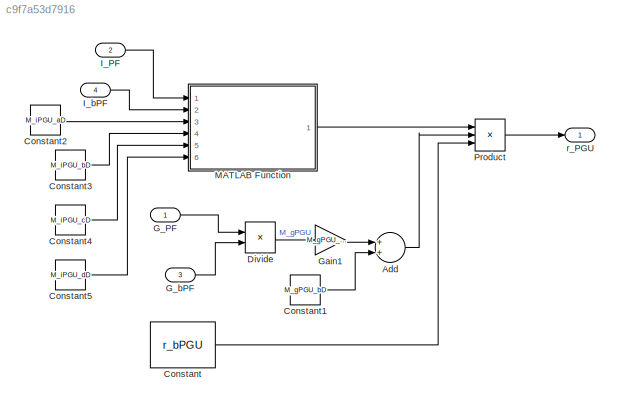
MODEL slx_c9f7a53d7916
KIND model
CONFIG AbsTol = auto
CONFIG EnableMultiTasking = off
CONFIG FixedStep = auto
CONFIG MaxStep = auto
CONFIG MinStep = auto
CONFIG RelTol = 1e-3
CONFIG SampleTimeConstraint = Unconstrained
CONFIG Solver = VariableStepAuto
CONFIG SolverName = VariableStepAuto
CONFIG StartTime = 0.0
CONFIG StopTime = 10.0
BLOCK [Sum] Add
  InputSameDT = off
  OutDataTypeStr = Inherit: Inherit via internal rule
  Ports = [2, 1]
  SaturateOnIntegerOverflow = off
BLOCK [Constant] Constant
  Value = r_bPGU
BLOCK [Constant] Constant1
  Value = M_gPGU_bD
BLOCK [Constant] Constant2
  Value = M_iPGU_aD
BLOCK [Constant] Constant3
  Value = M_iPGU_bD
BLOCK [Constant] Constant4
  Value = M_iPGU_cD
BLOCK [Constant] Constant5
  Value = M_iPGU_dD
BLOCK [Product] Divide
  InputSameDT = off
  Inputs = */
  OutDataTypeStr = Inherit: Inherit via internal rule
  Ports = [2, 1]
  RndMeth = Floor
  SaturateOnIntegerOverflow = off
BLOCK [Inport] G_PF
  IconDisplay = Port number
BLOCK [Inport] G_bPF
  IconDisplay = Port number
  Port = 3
BLOCK [Gain] Gain1
  Gain = M_gPGU_aD
  OutDataTypeStr = Inherit: Inherit via internal rule
  ParamDataTypeStr = Inherit: Inherit via internal rule
  SaturateOnIntegerOverflow = off
BLOCK [Inport] I_PF
  IconDisplay = Port number
  Port = 2
BLOCK [Inport] I_bPF
  IconDisplay = Port number
  Port = 4
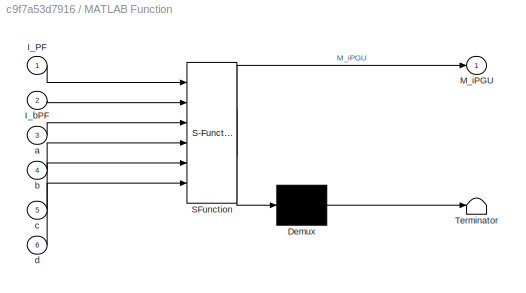
BLOCK [SubSystem] MATLAB Function
  ErrorFcn = Stateflow.Translate.translate
  PermitHierarchicalResolution = ExplicitOnly
  Ports = [6, 1]
  RequestExecContextInheritance = off
  SFBlockType = MATLAB Function
  TreatAsAtomicUnit = on
BLOCK [Demux] MATLAB Function/ Demux 
  Outputs = 1
  Ports = [1, 1]
BLOCK [S-Function] MATLAB Function/ SFunction 
  EnableBusSupport = on
  FunctionName = sf_sfun
  PortCounts = [6 2]
  Ports = [6, 2]
  SFcnIsStateOwnerBlock = off
  SFunctionDeploymentMode = off
  Tag = Stateflow S-Function r_PGU 2
BLOCK [Terminator] MATLAB Function/ Terminator 
BLOCK [Inport] MATLAB Function/I_PF
  IconDisplay = Port number
BLOCK [Inport] MATLAB Function/I_bPF
  IconDisplay = Port number
  Port = 2
BLOCK [Outport] MATLAB Function/M_iPGU
  IconDisplay = Port number
BLOCK [Inport] MATLAB Function/a
  IconDisplay = Port number
  Port = 3
BLOCK [Inport] MATLAB Function/b
  IconDisplay = Port number
  Port = 4
BLOCK [Inport] MATLAB Function/c
  IconDisplay = Port number
  Port = 5
BLOCK [Inport] MATLAB Function/d
  IconDisplay = Port number
  Port = 6
BLOCK [Product] Product
  InputSameDT = off
  Inputs = 3
  OutDataTypeStr = Inherit: Inherit via internal rule
  Ports = [3, 1]
  RndMeth = Floor
  SaturateOnIntegerOverflow = off
BLOCK [Outport] r_PGU
  IconDisplay = Port number
LINE Add:1 -> Product:2
LINE Constant1:1 -> Add:2
LINE Constant2:1 -> MATLAB Function:3
LINE Constant3:1 -> MATLAB Function:4
LINE Constant4:1 -> MATLAB Function:5
LINE Constant5:1 -> MATLAB Function:6
LINE Constant:1 -> Product:3
LINE Divide:1 -> Gain1:1
LINE G_PF:1 -> Divide:1
LINE G_bPF:1 -> Divide:2
LINE Gain1:1 -> Add:1
LINE I_PF:1 -> MATLAB Function:1
LINE I_bPF:1 -> MATLAB Function:2
LINE MATLAB Function:1 -> Product:1
LINE Product:1 -> r_PGU:1
CHART MATLAB Function states=1 transitions=1
  STATE_LABEL 'eML_blk_kernel()'
  STATE_LABEL 'SCRIPT:\nfunction M_iPGU = fcn(I_PF, I_bPF, a, b, c, d)\n\nM_iPGU = a + b*(tanh(c*(I_PF/I_bPF - d)));\n'
